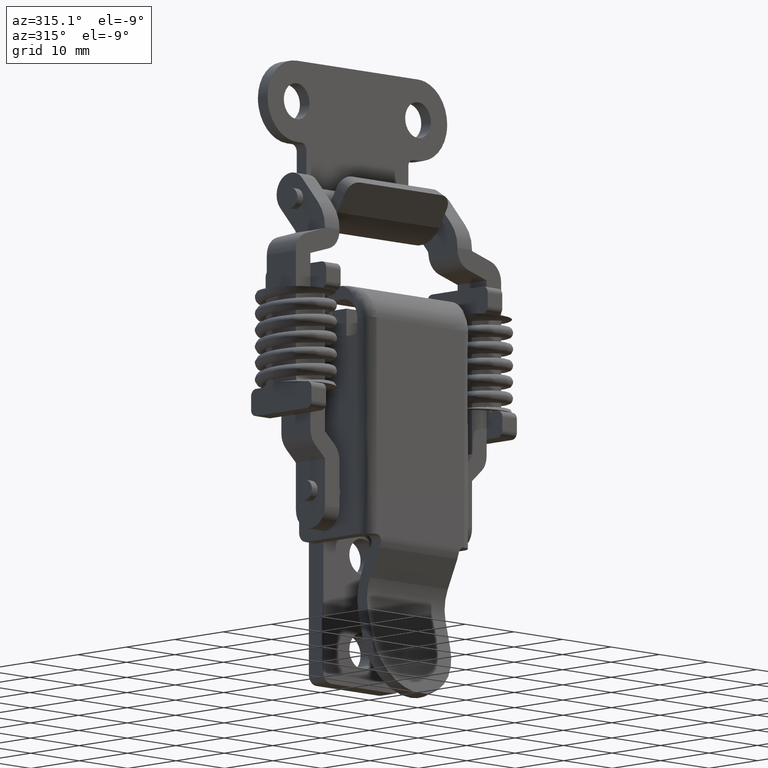
[diagram: clean part render]
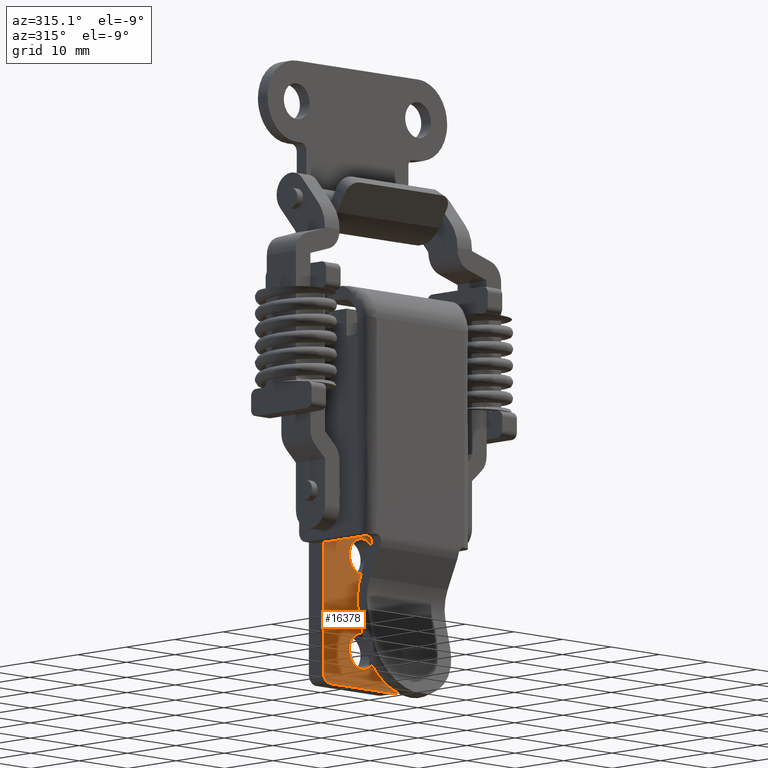
[diagram: same view with one face highlighted and labeled with its STEP entity id]
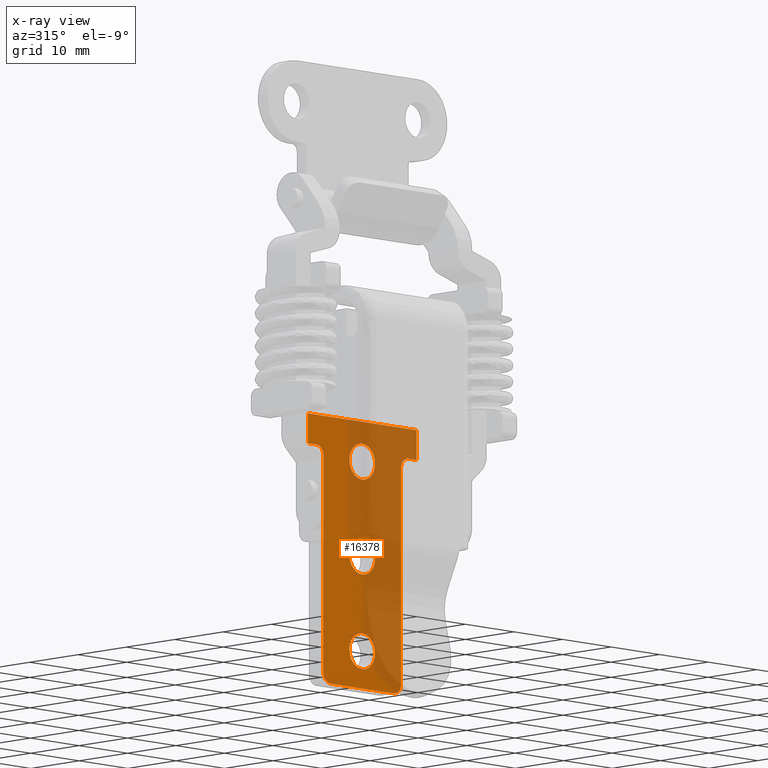
[diagram: x-ray of the same camera — body ghosted, the highlighted face saturated]
A machine part, auxiliary view. The second image highlights one B-rep face of the part: STEP entity #16378.
The next image is the same camera in x-ray: the body ghosted, the highlighted face saturated — about 54% of this face is hidden behind the body in this view.
In plain terms, the highlighted face is a freeform B-spline surface patch.
Its self-contained STEP definition (entity closure, byte-faithful):
#10532=CARTESIAN_POINT('',(1.500000000000056,-1.899124849800803,-35.151805534490677));
#10533=VERTEX_POINT('',#10532);
#10539=CARTESIAN_POINT('',(1.500000000000055,0.0,-34.350000000000001));
#10540=VERTEX_POINT('',#10539);
#10541=CARTESIAN_POINT('',(1.500000000000055,0.0,-34.350000000000001));
#10542=CARTESIAN_POINT('',(1.500000000000057,-0.187473440114889,-34.349968092018791));
#10543=CARTESIAN_POINT('',(1.500000000000052,-0.551363959883362,-34.388790407584423));
#10544=CARTESIAN_POINT('',(1.500000000000060,-1.226447389491505,-34.606495457866977));
#10545=CARTESIAN_POINT('',(1.500000000000048,-1.660923610639290,-34.906496140912381));
#10546=CARTESIAN_POINT('',(1.500000000000056,-1.899124849800803,-35.151805534490677));
#10547=B_SPLINE_CURVE_WITH_KNOTS('',3,(#10541,#10542,#10543,#10544,#10545,#10546),.UNSPECIFIED.,.F.,.U.,(4,1,1,4),(0.000000029235662,0.562416724377425,1.091732914812392,2.117333063436443),.UNSPECIFIED.);
#10548=EDGE_CURVE('',#10540,#10533,#10547,.T.);
#10550=CARTESIAN_POINT('',(1.500000000000055,2.649999999999560,-36.999998472998527));
#10551=VERTEX_POINT('',#10550);
#10552=CARTESIAN_POINT('',(1.500000000000055,2.649999999999560,-36.999998472998527));
#10553=CARTESIAN_POINT('',(1.500000000000057,2.650051735128489,-36.783192314694162));
#10554=CARTESIAN_POINT('',(1.500000000000053,2.604511151475703,-36.414654890960023));
#10555=CARTESIAN_POINT('',(1.500000000000057,2.427521617557825,-35.900238808138830));
#10556=CARTESIAN_POINT('',(1.500000000000053,2.137670746992583,-35.388402207493748));
#10557=CARTESIAN_POINT('',(1.500000000000058,1.714579343833864,-34.943947285983057));
#10558=CARTESIAN_POINT('',(1.500000000000052,1.235943896814602,-34.641034847855948));
#10559=CARTESIAN_POINT('',(1.500000000000060,0.693680516661968,-34.416369445906099));
#10560=CARTESIAN_POINT('',(1.500000000000050,0.281870131774153,-34.349824495126470));
#10561=CARTESIAN_POINT('',(1.500000000000055,0.0,-34.350000000000001));
#10562=B_SPLINE_CURVE_WITH_KNOTS('',3,(#10552,#10553,#10554,#10555,#10556,#10557,#10558,#10559,#10560,#10561),.UNSPECIFIED.,.F.,.U.,(4,1,1,1,1,1,1,4),(0.000000052759012,0.650420334015461,1.105721035757569,1.626066688393534,2.406561453333265,2.926907108806526,3.317163709479414,4.162713861821684),.UNSPECIFIED.);
#10563=EDGE_CURVE('',#10551,#10540,#10562,.T.);
#10565=CARTESIAN_POINT('',(1.500000000000055,0.0,-39.649999999999999));
#10566=VERTEX_POINT('',#10565);
#10567=CARTESIAN_POINT('',(1.500000000000055,0.0,-39.649999999999999));
#10568=CARTESIAN_POINT('',(1.500000000000054,0.281867380076367,-39.650150430009752));
#10569=CARTESIAN_POINT('',(1.500000000000057,0.693683708769814,-39.583651996883383));
#10570=CARTESIAN_POINT('',(1.500000000000054,1.235960086448609,-39.358974179260720));
#10571=CARTESIAN_POINT('',(1.500000000000058,1.640867592413556,-39.102584782560022));
#10572=CARTESIAN_POINT('',(1.500000000000055,2.082718802559388,-38.682023424101999));
#10573=CARTESIAN_POINT('',(1.500000000000050,2.422756265359304,-38.145086154218752));
#10574=CARTESIAN_POINT('',(1.500000000000063,2.613688440773166,-37.541994534085930));
#10575=CARTESIAN_POINT('',(1.500000000000046,2.650020402280453,-37.173438758365357));
#10576=CARTESIAN_POINT('',(1.500000000000055,2.649999999999560,-36.999998472998527));
#10577=B_SPLINE_CURVE_WITH_KNOTS('',3,(#10567,#10568,#10569,#10570,#10571,#10572,#10573,#10574,#10575,#10576),.UNSPECIFIED.,.F.,.U.,(4,1,1,1,1,1,1,4),(0.000000050669871,0.845550552800965,1.235807314999608,1.756153185550772,2.276478289004431,3.056994142481616,3.642381858812262,4.162715583151171),.UNSPECIFIED.);
#10578=EDGE_CURVE('',#10566,#10551,#10577,.T.);
#10580=CARTESIAN_POINT('',(1.500000000000055,-1.953785225732804,-38.790314304049922));
#10581=VERTEX_POINT('',#10580);
#10582=CARTESIAN_POINT('',(1.500000000000055,-1.953785225732804,-38.790314304049922));
#10583=CARTESIAN_POINT('',(1.500000000000055,-1.822393976296196,-38.933756059546297));
#10584=CARTESIAN_POINT('',(1.500000000000056,-1.536487853544094,-39.183894967754512));
#10585=CARTESIAN_POINT('',(1.500000000000057,-1.063355866211238,-39.445588221127899));
#10586=CARTESIAN_POINT('',(1.500000000000057,-0.549225173625535,-39.610762523185223));
#10587=CARTESIAN_POINT('',(1.500000000000055,-0.194523683513232,-39.650035261790087));
#10588=CARTESIAN_POINT('',(1.500000000000055,0.0,-39.649999999999999));
#10589=B_SPLINE_CURVE_WITH_KNOTS('',3,(#10582,#10583,#10584,#10585,#10586,#10587,#10588),.UNSPECIFIED.,.F.,.U.,(4,1,1,1,4),(0.000000035137236,0.583564767906616,1.132782756672843,1.613383983866272,2.196948716635057),.UNSPECIFIED.);
#10590=EDGE_CURVE('',#10581,#10566,#10589,.T.);
#10676=CARTESIAN_POINT('',(1.500000000000055,-2.649999999999560,-37.000001527001459));
#10677=VERTEX_POINT('',#10676);
#10678=CARTESIAN_POINT('',(1.500000000000055,-2.649999999999560,-37.000001527001459));
#10679=CARTESIAN_POINT('',(1.500000000000056,-2.650063606751722,-37.225242625826063));
#10680=CARTESIAN_POINT('',(1.500000000000054,-2.600083806418891,-37.614244627468317));
#10681=CARTESIAN_POINT('',(1.500000000000057,-2.375889145112275,-38.232936334786139));
#10682=CARTESIAN_POINT('',(1.500000000000055,-2.133713661851292,-38.594126137659352));
#10683=CARTESIAN_POINT('',(1.500000000000055,-1.953785225732804,-38.790314304049922));
#10684=B_SPLINE_CURVE_WITH_KNOTS('',3,(#10678,#10679,#10680,#10681,#10682,#10683),.UNSPECIFIED.,.F.,.U.,(4,1,1,4),(0.000000021837593,0.675722452046821,1.167138818452571,1.965719678743274),.UNSPECIFIED.);
#10685=EDGE_CURVE('',#10677,#10581,#10684,.T.);
#10687=CARTESIAN_POINT('',(1.500000000000056,-1.899124849800803,-35.151805534490677));
#10688=CARTESIAN_POINT('',(1.500000000000057,-2.062644130582639,-35.319704975686363));
#10689=CARTESIAN_POINT('',(1.500000000000053,-2.280459679463032,-35.613039152363889));
#10690=CARTESIAN_POINT('',(1.500000000000056,-2.568057073614376,-36.233171802387211));
#10691=CARTESIAN_POINT('',(1.500000000000055,-2.650283759989727,-36.680372129398513));
#10692=CARTESIAN_POINT('',(1.500000000000055,-2.649999999999560,-37.000001527001459));
#10693=B_SPLINE_CURVE_WITH_KNOTS('',3,(#10687,#10688,#10689,#10690,#10691,#10692),.UNSPECIFIED.,.F.,.U.,(4,1,1,4),(0.000000014551128,0.703086456376866,1.086587478445111,2.045341742540737),.UNSPECIFIED.);
#10694=EDGE_CURVE('',#10533,#10677,#10693,.T.);
#10739=CARTESIAN_POINT('',(1.500000000000055,-1.899124849800804,-49.151805534490677));
#10740=VERTEX_POINT('',#10739);
#10746=CARTESIAN_POINT('',(1.500000000000055,0.0,-48.349999999999987));
#10747=VERTEX_POINT('',#10746);
#10748=CARTESIAN_POINT('',(1.500000000000055,0.0,-48.349999999999987));
#10749=CARTESIAN_POINT('',(1.500000000000058,-0.330894665389497,-48.349667888044152));
#10750=CARTESIAN_POINT('',(1.500000000000048,-0.793808797897319,-48.437899695314570));
#10751=CARTESIAN_POINT('',(1.500000000000062,-1.431278145897715,-48.745458864880952));
#10752=CARTESIAN_POINT('',(1.500000000000055,-1.729975776643685,-48.977864411082017));
#10753=CARTESIAN_POINT('',(1.500000000000055,-1.899124849800804,-49.151805534490677));
#10754=B_SPLINE_CURVE_WITH_KNOTS('',3,(#10748,#10749,#10750,#10751,#10752,#10753),.UNSPECIFIED.,.F.,.U.,(4,1,1,4),(0.000000029235545,0.992504004872591,1.389494031701958,2.117333063436441),.UNSPECIFIED.);
#10755=EDGE_CURVE('',#10747,#10740,#10754,.T.);
#10757=CARTESIAN_POINT('',(1.500000000000055,2.649999999999560,-50.999998472998541));
#10758=VERTEX_POINT('',#10757);
#10759=CARTESIAN_POINT('',(1.500000000000055,2.649999999999560,-50.999998472998541));
#10760=CARTESIAN_POINT('',(1.500000000000058,2.650051745842676,-50.783191253851129));
#10761=CARTESIAN_POINT('',(1.500000000000052,2.604511320229300,-50.414656498423959));
#10762=CARTESIAN_POINT('',(1.500000000000054,2.427526935864669,-49.900233089680853));
#10763=CARTESIAN_POINT('',(1.500000000000059,2.180561901991306,-49.464276737904903));
#10764=CARTESIAN_POINT('',(1.500000000000053,1.782203178478070,-49.002323502581199));
#10765=CARTESIAN_POINT('',(1.500000000000052,1.226747682954125,-48.611078290236591));
#10766=CARTESIAN_POINT('',(1.500000000000062,0.585370070332292,-48.390543410952667));
#10767=CARTESIAN_POINT('',(1.500000000000052,0.173438831218034,-48.349985507579277));
#10768=CARTESIAN_POINT('',(1.500000000000055,0.0,-48.349999999999987));
#10769=B_SPLINE_CURVE_WITH_KNOTS('',3,(#10759,#10760,#10761,#10762,#10763,#10764,#10765,#10766,#10767,#10768),.UNSPECIFIED.,.F.,.U.,(4,1,1,1,1,1,1,4),(0.000000052763615,0.650420334018874,1.105721035760258,1.626066688395295,2.146396051883579,2.926907108806996,3.642380351701178,4.162713861821697),.UNSPECIFIED.);
#10770=EDGE_CURVE('',#10758,#10747,#10769,.T.);
#10772=CARTESIAN_POINT('',(1.500000000000055,0.0,-53.649999999999999));
#10773=VERTEX_POINT('',#10772);
#10774=CARTESIAN_POINT('',(1.500000000000055,0.0,-53.649999999999999));
#10775=CARTESIAN_POINT('',(1.500000000000056,0.238485637452630,-53.650072087498160));
#10776=CARTESIAN_POINT('',(1.500000000000053,0.737114298696890,-53.582257249371587));
#10777=CARTESIAN_POINT('',(1.500000000000056,1.358237397163159,-53.307014579036213));
#10778=CARTESIAN_POINT('',(1.500000000000054,1.839044856118729,-52.931602891682587));
#10779=CARTESIAN_POINT('',(1.500000000000058,2.237562146018274,-52.469795099622146));
#10780=CARTESIAN_POINT('',(1.500000000000048,2.562735234940827,-51.823779331926232));
#10781=CARTESIAN_POINT('',(1.500000000000062,2.650135933866391,-51.281857154638928));
#10782=CARTESIAN_POINT('',(1.500000000000055,2.649999999999560,-50.999998472998541));
#10783=B_SPLINE_CURVE_WITH_KNOTS('',3,(#10774,#10775,#10776,#10777,#10778,#10779,#10780,#10781,#10782),.UNSPECIFIED.,.F.,.U.,(4,1,1,1,1,1,4),(0.000000050669676,0.715464017217523,1.495980702797897,2.016318695154926,2.536648275005783,3.317165081484686,4.162715583151174),.UNSPECIFIED.);
#10784=EDGE_CURVE('',#10773,#10758,#10783,.T.);
#10786=CARTESIAN_POINT('',(1.500000000000055,-1.953785225732801,-52.790314304049922));
#10787=VERTEX_POINT('',#10786);
#10788=CARTESIAN_POINT('',(1.500000000000055,-1.953785225732801,-52.790314304049922));
#10789=CARTESIAN_POINT('',(1.500000000000056,-1.822388517472261,-52.933744854186372));
#10790=CARTESIAN_POINT('',(1.500000000000052,-1.493189826525938,-53.221841960246962));
#10791=CARTESIAN_POINT('',(1.500000000000063,-0.835220100668745,-53.558508609654773));
#10792=CARTESIAN_POINT('',(1.500000000000041,-0.297513139254868,-53.650158913203853));
#10793=CARTESIAN_POINT('',(1.500000000000055,0.0,-53.649999999999999));
#10794=B_SPLINE_CURVE_WITH_KNOTS('',3,(#10788,#10789,#10790,#10791,#10792,#10793),.UNSPECIFIED.,.F.,.U.,(4,1,1,4),(0.000000035142896,0.583564767910322,1.304430447126552,2.196948716634982),.UNSPECIFIED.);
#10795=EDGE_CURVE('',#10787,#10773,#10794,.T.);
#10881=CARTESIAN_POINT('',(1.500000000000055,-2.649999999999560,-51.000001527001452));
#10882=VERTEX_POINT('',#10881);
#10883=CARTESIAN_POINT('',(1.500000000000055,-2.649999999999560,-51.000001527001452));
#10884=CARTESIAN_POINT('',(1.500000000000056,-2.650406185020302,-51.348152272214193));
#10885=CARTESIAN_POINT('',(1.500000000000053,-2.518850144347453,-52.003021123988027));
#10886=CARTESIAN_POINT('',(1.500000000000057,-2.161469266534310,-52.563997297902262));
#10887=CARTESIAN_POINT('',(1.500000000000055,-1.953785225732801,-52.790314304049922));
#10888=B_SPLINE_CURVE_WITH_KNOTS('',3,(#10883,#10884,#10885,#10886,#10887),.UNSPECIFIED.,.F.,.U.,(4,1,4),(0.000000021837776,1.044284839348766,1.965719678743281),.UNSPECIFIED.);
#10889=EDGE_CURVE('',#10882,#10787,#10888,.T.);
#10891=CARTESIAN_POINT('',(1.500000000000055,-1.899124849800804,-49.151805534490677));
#10892=CARTESIAN_POINT('',(1.500000000000055,-2.062642292947223,-49.319704937411061));
#10893=CARTESIAN_POINT('',(1.500000000000056,-2.280463330963126,-49.613039123731767));
#10894=CARTESIAN_POINT('',(1.500000000000054,-2.568053062892532,-50.233171872716440));
#10895=CARTESIAN_POINT('',(1.500000000000059,-2.650286939206297,-50.680372060342371));
#10896=CARTESIAN_POINT('',(1.500000000000055,-2.649999999999560,-51.000001527001452));
#10897=B_SPLINE_CURVE_WITH_KNOTS('',3,(#10891,#10892,#10893,#10894,#10895,#10896),.UNSPECIFIED.,.F.,.U.,(4,1,1,4),(0.000000014552420,0.703086456377547,1.086587478445430,2.045341742540728),.UNSPECIFIED.);
#10898=EDGE_CURVE('',#10740,#10882,#10897,.T.);
#10943=CARTESIAN_POINT('',(1.500000000000055,-1.899124849800799,-63.151805534490677));
#10944=VERTEX_POINT('',#10943);
#10950=CARTESIAN_POINT('',(1.500000000000055,0.0,-62.350000000000001));
#10951=VERTEX_POINT('',#10950);
#10952=CARTESIAN_POINT('',(1.500000000000055,0.0,-62.350000000000001));
#10953=CARTESIAN_POINT('',(1.500000000000063,-0.286748359446947,-62.349827530834602));
#10954=CARTESIAN_POINT('',(1.500000000000044,-0.749786312518731,-62.425943055095473));
#10955=CARTESIAN_POINT('',(1.500000000000068,-1.396144145880270,-62.718089336718208));
#10956=CARTESIAN_POINT('',(1.500000000000047,-1.729978300344312,-62.977868043660273));
#10957=CARTESIAN_POINT('',(1.500000000000055,-1.899124849800799,-63.151805534490677));
#10958=B_SPLINE_CURVE_WITH_KNOTS('',3,(#10952,#10953,#10954,#10955,#10956,#10957),.UNSPECIFIED.,.F.,.U.,(4,1,1,4),(0.000000029235607,0.860173917986325,1.389494031701710,2.117333063436429),.UNSPECIFIED.);
#10959=EDGE_CURVE('',#10951,#10944,#10958,.T.);
#10961=CARTESIAN_POINT('',(1.500000000000055,2.649999999999560,-64.999998472998527));
#10962=VERTEX_POINT('',#10961);
#10963=CARTESIAN_POINT('',(1.500000000000055,2.649999999999560,-64.999998472998527));
#10964=CARTESIAN_POINT('',(1.500000000000057,2.650240906348919,-64.674756468042816));
#10965=CARTESIAN_POINT('',(1.500000000000053,2.557066229445105,-64.176308406638057));
#10966=CARTESIAN_POINT('',(1.500000000000057,2.272848211696129,-63.612042705534833));
#10967=CARTESIAN_POINT('',(1.500000000000054,1.987977670279922,-63.227889947853612));
#10968=CARTESIAN_POINT('',(1.500000000000055,1.672429836292192,-62.927461408944303));
#10969=CARTESIAN_POINT('',(1.500000000000058,1.274762669423682,-62.661763546121662));
#10970=CARTESIAN_POINT('',(1.500000000000053,0.737045298182533,-62.423352900904803));
#10971=CARTESIAN_POINT('',(1.500000000000057,0.281865282841150,-62.349832438447677));
#10972=CARTESIAN_POINT('',(1.500000000000055,0.0,-62.350000000000001));
#10973=B_SPLINE_CURVE_WITH_KNOTS('',3,(#10963,#10964,#10965,#10966,#10967,#10968,#10969,#10970,#10971,#10972),.UNSPECIFIED.,.F.,.U.,(4,1,1,1,1,1,1,4),(0.000000052761402,0.975635974219104,1.495980084833970,1.886236566520360,2.406561453334104,2.796820626759640,3.317163709479786,4.162713861821680),.UNSPECIFIED.);
#10974=EDGE_CURVE('',#10962,#10951,#10973,.T.);
#10976=CARTESIAN_POINT('',(1.500000000000055,0.0,-67.650000000000006));
#10977=VERTEX_POINT('',#10976);
#10978=CARTESIAN_POINT('',(1.500000000000055,0.0,-67.650000000000006));
#10979=CARTESIAN_POINT('',(1.500000000000057,0.281869726383472,-67.650175153153128));
#10980=CARTESIAN_POINT('',(1.500000000000052,0.693682443909083,-67.583630612744358));
#10981=CARTESIAN_POINT('',(1.500000000000058,1.235958776207371,-67.358979125646670));
#10982=CARTESIAN_POINT('',(1.500000000000056,1.640880084798954,-67.102589907064370));
#10983=CARTESIAN_POINT('',(1.500000000000052,2.019538297480878,-66.742069002665303));
#10984=CARTESIAN_POINT('',(1.500000000000059,2.320592663851178,-66.314602533275689));
#10985=CARTESIAN_POINT('',(1.500000000000054,2.576651635365915,-65.737040565567284));
#10986=CARTESIAN_POINT('',(1.500000000000057,2.650154176289936,-65.281863712433378));
#10987=CARTESIAN_POINT('',(1.500000000000055,2.649999999999560,-64.999998472998527));
#10988=B_SPLINE_CURVE_WITH_KNOTS('',3,(#10978,#10979,#10980,#10981,#10982,#10983,#10984,#10985,#10986,#10987),.UNSPECIFIED.,.F.,.U.,(4,1,1,1,1,1,1,4),(0.000000050664528,0.845550552797063,1.235807314996310,1.756153185548301,2.276478289002708,2.796821784062646,3.317165081484217,4.162715583151183),.UNSPECIFIED.);
#10989=EDGE_CURVE('',#10977,#10962,#10988,.T.);
#10991=CARTESIAN_POINT('',(1.500000000000055,-1.953785225732807,-66.790314304049900));
#10992=VERTEX_POINT('',#10991);
#10993=CARTESIAN_POINT('',(1.500000000000055,-1.953785225732807,-66.790314304049900));
#10994=CARTESIAN_POINT('',(1.500000000000053,-1.722111247753737,-67.043712609517456));
#10995=CARTESIAN_POINT('',(1.500000000000057,-1.280524681396105,-67.368084986362589));
#10996=CARTESIAN_POINT('',(1.500000000000052,-0.583542319384511,-67.606974887909502));
#10997=CARTESIAN_POINT('',(1.500000000000056,-0.194522904375762,-67.650032597391785));
#10998=CARTESIAN_POINT('',(1.500000000000055,0.0,-67.650000000000006));
#10999=B_SPLINE_CURVE_WITH_KNOTS('',3,(#10993,#10994,#10995,#10996,#10997,#10998),.UNSPECIFIED.,.F.,.U.,(4,1,1,4),(0.000000035139896,1.029824119108971,1.613383983866760,2.196948716635052),.UNSPECIFIED.);
#11000=EDGE_CURVE('',#10992,#10977,#10999,.T.);
#11087=CARTESIAN_POINT('',(1.500000000000055,-2.649999999999560,-65.000001527001473));
#11088=VERTEX_POINT('',#11087);
#11089=CARTESIAN_POINT('',(1.500000000000055,-2.649999999999560,-65.000001527001473));
#11090=CARTESIAN_POINT('',(1.500000000000055,-2.650063814473942,-65.225243194389876));
#11091=CARTESIAN_POINT('',(1.500000000000054,-2.600083362109110,-65.614244413009658));
#11092=CARTESIAN_POINT('',(1.500000000000056,-2.375889273143770,-66.232936454924484));
#11093=CARTESIAN_POINT('',(1.500000000000053,-2.133713456469280,-66.594126042400617));
#11094=CARTESIAN_POINT('',(1.500000000000055,-1.953785225732807,-66.790314304049900));
#11095=B_SPLINE_CURVE_WITH_KNOTS('',3,(#11089,#11090,#11091,#11092,#11093,#11094),.UNSPECIFIED.,.F.,.U.,(4,1,1,4),(0.000000021837701,0.675722452046869,1.167138818452658,1.965719678743263),.UNSPECIFIED.);
#11096=EDGE_CURVE('',#11088,#10992,#11095,.T.);
#11098=CARTESIAN_POINT('',(1.500000000000055,-1.899124849800799,-63.151805534490677));
#11099=CARTESIAN_POINT('',(1.500000000000056,-2.122245975551193,-63.380668476062240));
#11100=CARTESIAN_POINT('',(1.500000000000055,-2.399314032170113,-63.794492906470772));
#11101=CARTESIAN_POINT('',(1.500000000000057,-2.610507449516752,-64.446087181025476));
#11102=CARTESIAN_POINT('',(1.500000000000054,-2.650032810672906,-64.808252588569033));
#11103=CARTESIAN_POINT('',(1.500000000000055,-2.649999999999560,-65.000001527001473));
#11104=B_SPLINE_CURVE_WITH_KNOTS('',3,(#11098,#11099,#11100,#11101,#11102,#11103),.UNSPECIFIED.,.F.,.U.,(4,1,1,4),(0.000000014550001,0.958754278596206,1.470089353041829,2.045341742540753),.UNSPECIFIED.);
#11105=EDGE_CURVE('',#10944,#11088,#11104,.T.);
#14920=CARTESIAN_POINT('',(1.500000000000000,-6.500000000000000,-70.500000000000000));
#14921=VERTEX_POINT('',#14920);
#14922=CARTESIAN_POINT('',(1.500000000000000,-8.0,-69.0));
#14923=VERTEX_POINT('',#14922);
#14924=CARTESIAN_POINT('',(1.500000000000000,-6.500000000000000,-70.500000000000000));
#14925=CARTESIAN_POINT('',(1.499999999999983,-6.708679014463791,-70.500285696607691));
#14926=CARTESIAN_POINT('',(1.499999999999961,-7.015240794715743,-70.434920572906904));
#14927=CARTESIAN_POINT('',(1.499999999999947,-7.369277335062734,-70.234273584766058));
#14928=CARTESIAN_POINT('',(1.499999999999944,-7.593368104347864,-70.040980422653035));
#14929=CARTESIAN_POINT('',(1.499999999999954,-7.805841392730586,-69.768810824451435));
#14930=CARTESIAN_POINT('',(1.499999999999968,-7.961670637585706,-69.417237229599465));
#14931=CARTESIAN_POINT('',(1.499999999999991,-8.000039251122200,-69.134988136493632));
#14932=CARTESIAN_POINT('',(1.500000000000000,-8.0,-69.0));
#14933=B_SPLINE_CURVE_WITH_KNOTS('',3,(#14924,#14925,#14926,#14927,#14928,#14929,#14930,#14931,#14932),.UNSPECIFIED.,.F.,.U.,(4,1,1,1,1,1,4),(0.000000155801593,0.625881207266825,0.920430213995149,1.214921829308832,1.509469917392794,1.951283685430869,2.356253616513995),.UNSPECIFIED.);
#14934=EDGE_CURVE('',#14921,#14923,#14933,.T.);
#14978=CARTESIAN_POINT('',(1.500000000000000,7.999999999999900,-69.0));
#14979=VERTEX_POINT('',#14978);
#14980=CARTESIAN_POINT('',(1.500000000000000,6.499999999999840,-70.500000000000000));
#14981=VERTEX_POINT('',#14980);
#14982=CARTESIAN_POINT('',(1.500000000000000,7.999999999999900,-69.0));
#14983=CARTESIAN_POINT('',(1.499999999999997,8.000111362754321,-69.171815913628876));
#14984=CARTESIAN_POINT('',(1.500000000000006,7.946706743691605,-69.478549261533288));
#14985=CARTESIAN_POINT('',(1.499999999999996,7.758469480547859,-69.841279908312458));
#14986=CARTESIAN_POINT('',(1.500000000000007,7.540979811310919,-70.093372764978014));
#14987=CARTESIAN_POINT('',(1.499999999999989,7.317395148041642,-70.267850103599571));
#14988=CARTESIAN_POINT('',(1.500000000000012,6.978469242358290,-70.443753745527758));
#14989=CARTESIAN_POINT('',(1.499999999999995,6.696394682873643,-70.500230681138390));
#14990=CARTESIAN_POINT('',(1.500000000000000,6.499999999999840,-70.500000000000000));
#14991=B_SPLINE_CURVE_WITH_KNOTS('',3,(#14982,#14983,#14984,#14985,#14986,#14987,#14988,#14989,#14990),.UNSPECIFIED.,.F.,.U.,(4,1,1,1,1,1,4),(0.000000155802904,0.515427483220355,0.920430213996382,1.214921829309998,1.509469917393749,1.767190279745619,2.356253616514081),.UNSPECIFIED.);
#14992=EDGE_CURVE('',#14979,#14981,#14991,.T.);
#15028=CARTESIAN_POINT('',(1.499999999999946,-8.000000000000110,-37.0));
#15029=VERTEX_POINT('',#15028);
#15030=CARTESIAN_POINT('',(1.499999999999946,-8.000000000000110,-37.0));
#15031=CARTESIAN_POINT('',(1.500000000000000,-8.0,-69.0));
#15032=QUASI_UNIFORM_CURVE('',1,(#15030,#15031),.UNSPECIFIED.,.F.,.U.);
#15033=EDGE_CURVE('',#15029,#14923,#15032,.T.);
#15079=CARTESIAN_POINT('',(1.499999999999946,-9.500000000000108,-35.500000000000000));
#15080=VERTEX_POINT('',#15079);
#15086=CARTESIAN_POINT('',(1.499999999999946,-8.000000000000110,-37.0));
#15087=CARTESIAN_POINT('',(1.499999999999945,-7.999996153264373,-36.901828473987869));
#15088=CARTESIAN_POINT('',(1.499999999999949,-8.024134651917423,-36.656375094896518));
#15089=CARTESIAN_POINT('',(1.499999999999944,-8.145323842471179,-36.317655114227222));
#15090=CARTESIAN_POINT('',(1.499999999999946,-8.389796307192722,-35.961269804926502));
#15091=CARTESIAN_POINT('',(1.499999999999948,-8.726699264040917,-35.684722932382520));
#15092=CARTESIAN_POINT('',(1.499999999999942,-9.131842322081559,-35.528559198069807));
#15093=CARTESIAN_POINT('',(1.499999999999952,-9.389556014934229,-35.499988671523617));
#15094=CARTESIAN_POINT('',(1.499999999999946,-9.500000000000108,-35.500000000000000));
#15095=B_SPLINE_CURVE_WITH_KNOTS('',3,(#15086,#15087,#15088,#15089,#15090,#15091,#15092,#15093,#15094),.UNSPECIFIED.,.F.,.U.,(4,1,1,1,1,1,4),(0.000000155793787,0.294528449999846,0.736338833505543,1.067705211214833,1.583096874073435,2.024910642035160,2.356253616513999),.UNSPECIFIED.);
#15096=EDGE_CURVE('',#15029,#15080,#15095,.T.);
#15106=CARTESIAN_POINT('',(1.500000000000045,-11.199999999999999,-35.500000000000000));
#15107=VERTEX_POINT('',#15106);
#15108=CARTESIAN_POINT('',(1.500000000000045,-11.199999999999999,-35.500000000000000));
#15109=CARTESIAN_POINT('',(1.499999999999946,-9.500000000000108,-35.500000000000000));
#15110=QUASI_UNIFORM_CURVE('',1,(#15108,#15109),.UNSPECIFIED.,.F.,.U.);
#15111=EDGE_CURVE('',#15107,#15080,#15110,.T.);
#15136=CARTESIAN_POINT('',(1.500000000000045,11.199999999999999,-35.500000000000000));
#15137=VERTEX_POINT('',#15136);
#15150=CARTESIAN_POINT('',(1.499999999999946,9.499999999999890,-35.500000000000000));
#15151=VERTEX_POINT('',#15150);
#15157=CARTESIAN_POINT('',(1.500000000000045,11.199999999999999,-35.500000000000000));
#15158=CARTESIAN_POINT('',(1.499999999999946,9.499999999999890,-35.500000000000000));
#15159=QUASI_UNIFORM_CURVE('',1,(#15157,#15158),.UNSPECIFIED.,.F.,.U.);
#15160=EDGE_CURVE('',#15137,#15151,#15159,.T.);
#15178=CARTESIAN_POINT('',(1.499999999999946,7.999999999999889,-37.0));
#15179=VERTEX_POINT('',#15178);
#15180=CARTESIAN_POINT('',(1.499999999999946,7.999999999999889,-37.0));
#15181=CARTESIAN_POINT('',(1.500000000000000,7.999999999999900,-69.0));
#15182=QUASI_UNIFORM_CURVE('',1,(#15180,#15181),.UNSPECIFIED.,.F.,.U.);
#15183=EDGE_CURVE('',#15179,#14979,#15182,.T.);
#15220=CARTESIAN_POINT('',(1.499999999999946,9.499999999999890,-35.500000000000000));
#15221=CARTESIAN_POINT('',(1.499999999999947,9.279054227100422,-35.499673913673547));
#15222=CARTESIAN_POINT('',(1.499999999999945,8.898899975639578,-35.585607897127332));
#15223=CARTESIAN_POINT('',(1.499999999999947,8.499255557963863,-35.859893521064102));
#15224=CARTESIAN_POINT('',(1.499999999999947,8.257671477605715,-36.140062807659113));
#15225=CARTESIAN_POINT('',(1.499999999999946,8.061134671303364,-36.496984401578132));
#15226=CARTESIAN_POINT('',(1.499999999999949,7.999790746767720,-36.803612291592430));
#15227=CARTESIAN_POINT('',(1.499999999999946,7.999999999999889,-37.0));
#15228=B_SPLINE_CURVE_WITH_KNOTS('',3,(#15220,#15221,#15222,#15223,#15224,#15225,#15226,#15227),.UNSPECIFIED.,.F.,.U.,(4,1,1,1,1,4),(0.000000155792092,0.662700269724921,1.141329618943853,1.435821382453689,1.767190279744009,2.356253616514007),.UNSPECIFIED.);
#15229=EDGE_CURVE('',#15151,#15179,#15228,.T.);
#16022=CARTESIAN_POINT('',(1.500000000000085,11.199999999999880,-31.083005244258349));
#16023=VERTEX_POINT('',#16022);
#16024=CARTESIAN_POINT('',(1.500000000000085,11.199999999999880,-31.083005244258349));
#16025=CARTESIAN_POINT('',(1.500000000000045,11.199999999999999,-35.500000000000000));
#16026=QUASI_UNIFORM_CURVE('',1,(#16024,#16025),.UNSPECIFIED.,.F.,.U.);
#16027=EDGE_CURVE('',#16023,#15137,#16026,.T.);
#16052=CARTESIAN_POINT('',(1.500000000000000,-6.500000000000000,-70.500000000000000));
#16053=CARTESIAN_POINT('',(1.500000000000000,6.499999999999840,-70.500000000000000));
#16054=QUASI_UNIFORM_CURVE('',1,(#16052,#16053),.UNSPECIFIED.,.F.,.U.);
#16055=EDGE_CURVE('',#14921,#14981,#16054,.T.);
#16072=CARTESIAN_POINT('',(1.500000000000085,-11.199999999999999,-31.083005244258349));
#16073=VERTEX_POINT('',#16072);
#16074=CARTESIAN_POINT('',(1.500000000000085,-11.199999999999999,-31.083005244258349));
#16075=CARTESIAN_POINT('',(1.500000000000045,-11.199999999999999,-35.500000000000000));
#16076=QUASI_UNIFORM_CURVE('',1,(#16074,#16075),.UNSPECIFIED.,.F.,.U.);
#16077=EDGE_CURVE('',#16073,#15107,#16076,.T.);
#16252=CARTESIAN_POINT('',(1.500000000000085,-11.199999999999999,-31.083005244258349));
#16253=CARTESIAN_POINT('',(1.500000000000085,11.199999999999880,-31.083005244258349));
#16254=QUASI_UNIFORM_CURVE('',1,(#16252,#16253),.UNSPECIFIED.,.F.,.U.);
#16255=EDGE_CURVE('',#16073,#16023,#16254,.T.);
#16335=CARTESIAN_POINT('',(1.500000000000000,-12.318879746309280,-29.114127172643929));
#16336=CARTESIAN_POINT('',(1.500000000000000,-12.318879746309280,-72.468879833691403));
#16337=CARTESIAN_POINT('',(1.500000000000000,12.318880547395700,-29.114127172643929));
#16338=CARTESIAN_POINT('',(1.500000000000000,12.318880547395700,-72.468879833691403));
#16339=B_SPLINE_SURFACE_WITH_KNOTS('',1,1,((#16335,#16337),(#16336,#16338)),.UNSPECIFIED.,.F.,.F.,.U.,(2,2),(2,2),(0.0,43.354752661047478),(0.0,24.637760293704979),.UNSPECIFIED.);
#16340=ORIENTED_EDGE('',*,*,#15183,.T.);
#16341=ORIENTED_EDGE('',*,*,#14992,.T.);
#16342=ORIENTED_EDGE('',*,*,#16055,.F.);
#16343=ORIENTED_EDGE('',*,*,#14934,.T.);
#16344=ORIENTED_EDGE('',*,*,#15033,.F.);
#16345=ORIENTED_EDGE('',*,*,#15096,.T.);
#16346=ORIENTED_EDGE('',*,*,#15111,.F.);
#16347=ORIENTED_EDGE('',*,*,#16077,.F.);
#16348=ORIENTED_EDGE('',*,*,#16255,.T.);
#16349=ORIENTED_EDGE('',*,*,#16027,.T.);
#16350=ORIENTED_EDGE('',*,*,#15160,.T.);
#16351=ORIENTED_EDGE('',*,*,#15229,.T.);
#16352=EDGE_LOOP('',(#16340,#16341,#16342,#16343,#16344,#16345,#16346,#16347,#16348,#16349,#16350,#16351));
#16353=FACE_OUTER_BOUND('',#16352,.T.);
#16354=ORIENTED_EDGE('',*,*,#10784,.T.);
#16355=ORIENTED_EDGE('',*,*,#10770,.T.);
#16356=ORIENTED_EDGE('',*,*,#10755,.T.);
#16357=ORIENTED_EDGE('',*,*,#10898,.T.);
#16358=ORIENTED_EDGE('',*,*,#10889,.T.);
#16359=ORIENTED_EDGE('',*,*,#10795,.T.);
#16360=EDGE_LOOP('',(#16354,#16355,#16356,#16357,#16358,#16359));
#16361=FACE_BOUND('',#16360,.T.);
#16362=ORIENTED_EDGE('',*,*,#10989,.T.);
#16363=ORIENTED_EDGE('',*,*,#10974,.T.);
#16364=ORIENTED_EDGE('',*,*,#10959,.T.);
#16365=ORIENTED_EDGE('',*,*,#11105,.T.);
#16366=ORIENTED_EDGE('',*,*,#11096,.T.);
#16367=ORIENTED_EDGE('',*,*,#11000,.T.);
#16368=EDGE_LOOP('',(#16362,#16363,#16364,#16365,#16366,#16367));
#16369=FACE_BOUND('',#16368,.T.);
#16370=ORIENTED_EDGE('',*,*,#10578,.T.);
#16371=ORIENTED_EDGE('',*,*,#10563,.T.);
#16372=ORIENTED_EDGE('',*,*,#10548,.T.);
#16373=ORIENTED_EDGE('',*,*,#10694,.T.);
#16374=ORIENTED_EDGE('',*,*,#10685,.T.);
#16375=ORIENTED_EDGE('',*,*,#10590,.T.);
#16376=EDGE_LOOP('',(#16370,#16371,#16372,#16373,#16374,#16375));
#16377=FACE_BOUND('',#16376,.T.);
#16378=ADVANCED_FACE('',(#16353,#16361,#16369,#16377),#16339,.F.);